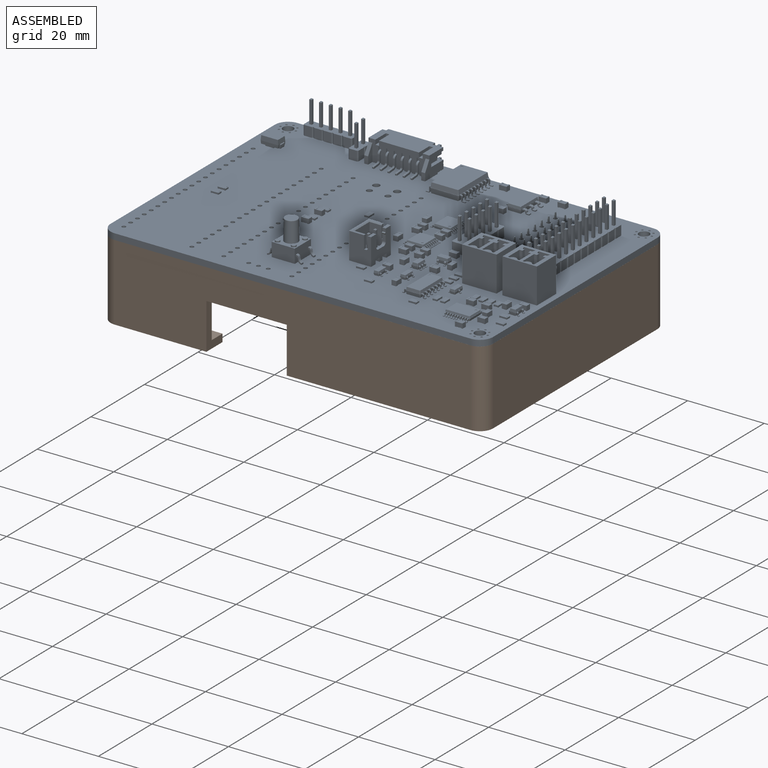
[diagram: assembled view]
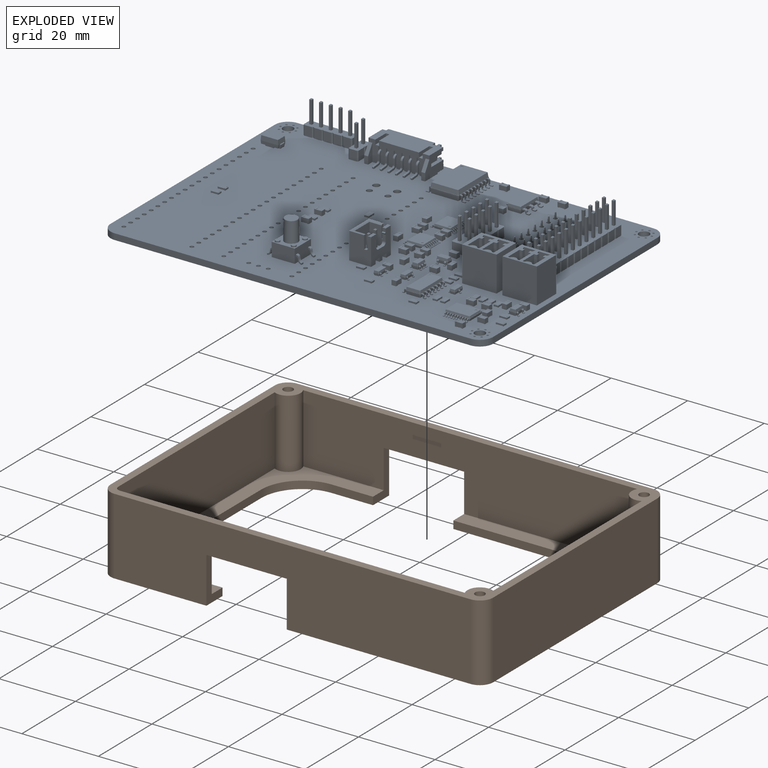
[diagram: exploded view]
GUIDED TOUR — FREECAD ASSEMBLY "Case1"

This assembly has 2 components, labeled P0..P1 below (a component is one placed body or linked part; the same part can appear more than once), held together by 0 modeled joints plus 1 derived contact edge. A joint is a constraint between two components; its type names the relative motion it leaves free:
  CONTACT — a derived adjacency edge — the two components touch in the source model (clearance under 2% of the assembly's diagonal); it is measured from the geometry, not a modeled constraint.
Axis/direction vectors are unit vectors and 'through' points are millimeter coordinates, both in the assembly's world frame.

MATES
  1. CONTACT "contact_0_1": P0 <-> P1, contact direction (0.000, 0.000, -1.000) through (-49.95, -24.05, -1.60) mm (derived from contact, not a modeled constraint)

ASSEMBLY ORDER
  1. P0 — the base component [order verified]
  2. P1 [order verified]
Order-tag legend:
  [order verified] — this step's position reverses a verified removal order: the component was checked to insert without passing through the ones already placed.

Of the 2 components, 1 carries a construction recipe — the FreeCAD feature program (sketches with constraints, then the solid features that consume them) that regenerates the part from scratch, quoted from this document or from the linked companion document it references; the rest are supplied as boundary geometry only. The tour below walks the components in assembly order: each is shown spotlighted twice — in the assembled view, then in the exploded view, where a leader line traces a displaced component back to its assembled socket (components that stay in place when exploded have no leader line; saturated green if recipe-attached, orange if geometry-only; every other component desaturated gray) — followed by its recipe or geometry summary and the mates that hold it.
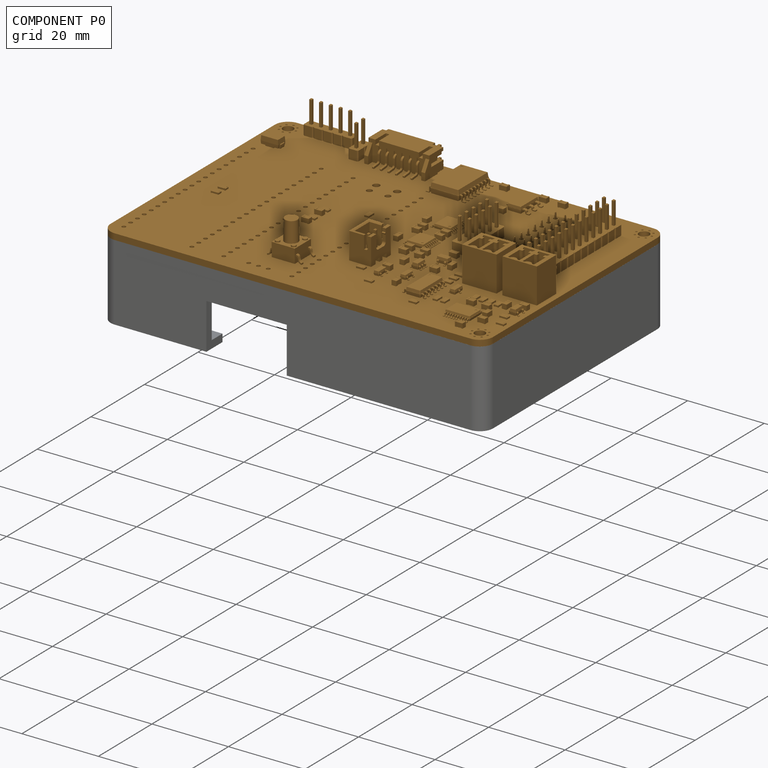
[diagram: component P0 — assembled]
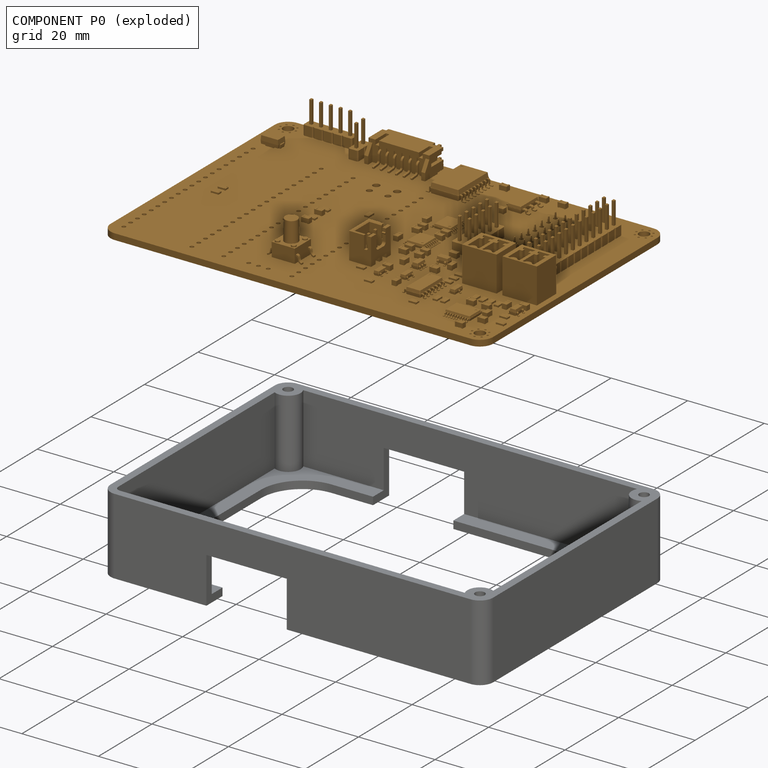
[diagram: component P0 — exploded]
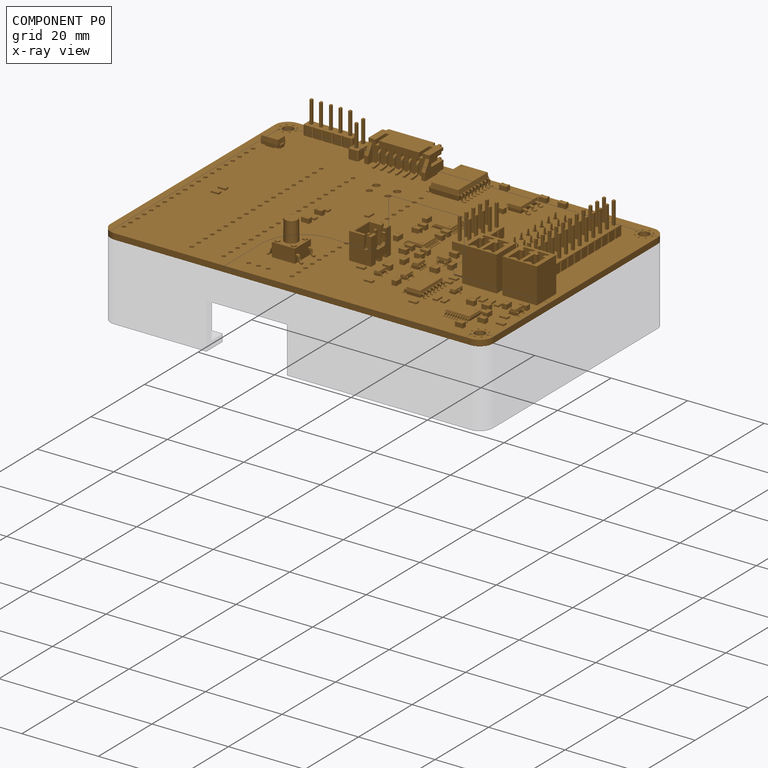
[diagram: component P0 — x-ray view]
COMPONENT P0 — geometry summary ("El-Load-V2-Digital"; no construction recipe available for this part):
  bounding box: 100.0 x 68.2 x 17.8 mm
  tessellated surface: 104,562 triangles
  volume: 14417 mm^3 (12% of its bounding box)
Held by: resting contact with P1 (derived edge).
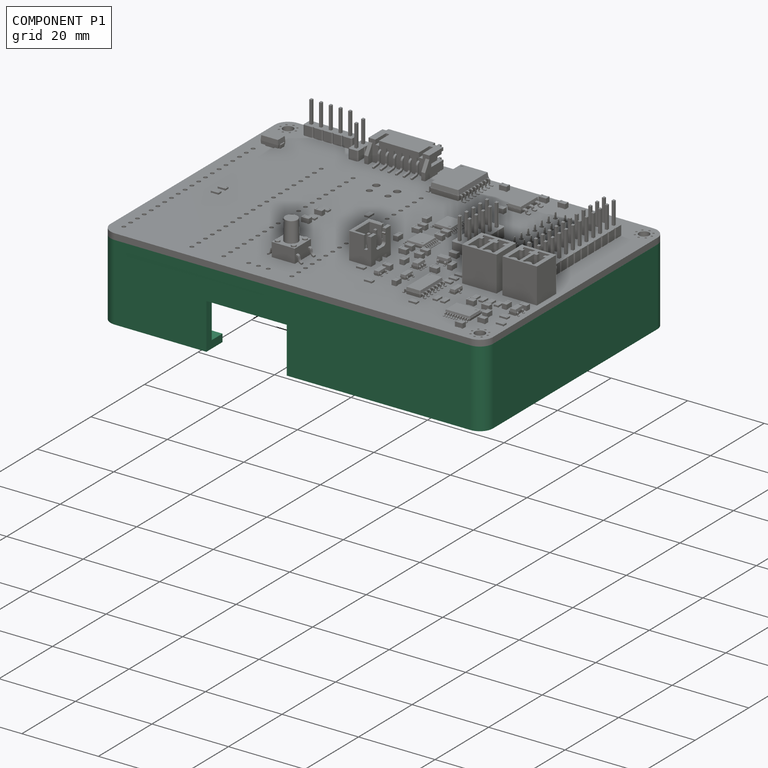
[diagram: component P1 — assembled]
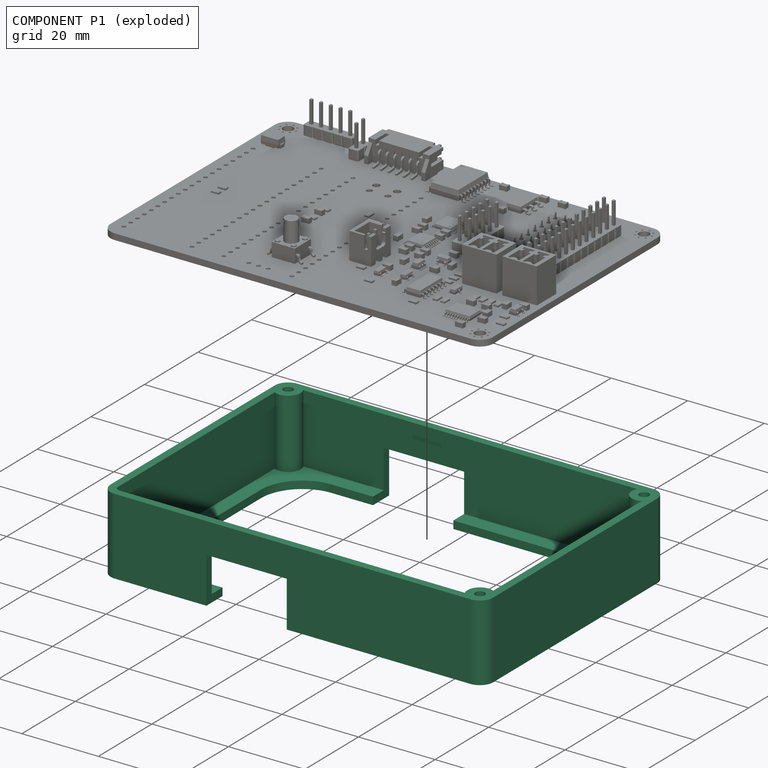
[diagram: component P1 — exploded]
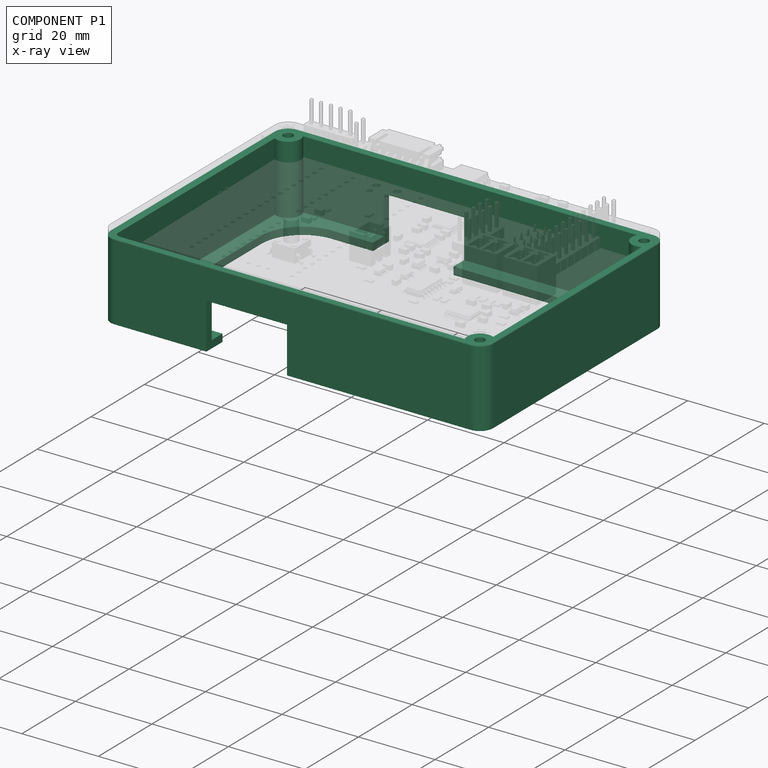
[diagram: component P1 — x-ray view]
COMPONENT P1 — recipe-attached ("Body", modeled in this document).
Held by: resting contact with P0 (derived edge).
Construction recipe (the document's own serialized feature program — sketch geometry with constraints, then the solid features built on it; lengths are millimeters unless a unit is written):

FEATURE [PartDesign::SubShapeBinder] Binder
  BindCopyOnChange = 0
  BindMode = 0
  ClaimChildren = false
  Context = -> Body [Binder.]
  Fuse = false
  MakeFace = true
  OffsetFill = false
  OffsetIntersection = false
  OffsetJoinType = 0
  OffsetOpenResult = false
  PartialLoad = false
  Relative = true
  Support = -> [Board_76d8[Board_Geoms_76d8.]]
  _Version = 2
FEATURE [Sketcher::SketchObject] Sketch
  ExternalGeometry = -> [Binder]
  FullyConstrained = true
  MapMode = 5
  Support = -> [XY_Plane010]
  sketch-geometry (15):
    g0: LineSegment StartX=-46.45 StartY=40.7 StartZ=0 EndX=46.5237 EndY=40.7 EndZ=0
    g1: LineSegment StartX=50.0251 StartY=37.2 StartZ=0 EndX=50.05 EndY=-24.05 EndZ=0
    g2: LineSegment StartX=46.55 StartY=-27.55 StartZ=0 EndX=-46.4892 EndY=-27.5122 EndZ=0
    g3: LineSegment StartX=-49.95 StartY=-24.05 StartZ=0 EndX=-49.95 EndY=37.2 EndZ=0
    g4: ArcOfCircle CenterX=-46.45 CenterY=37.2 CenterZ=0 NormalX=0 NormalY=0 NormalZ=1 AngleXU=0 Radius=3.5 StartAngle=1.5708 EndAngle=3.14159
    g5: GeomPoint X=-49.95 Y=40.7 Z=0
    g6: ArcOfCircle CenterX=-46.4878 CenterY=-24.05 CenterZ=0 NormalX=0 NormalY=0 NormalZ=1 AngleXU=0 Radius=3.46222 StartAngle=3.14159 EndAngle=4.71198
    g7: GeomPoint X=-49.95 Y=-27.5108 Z=0
    g8: ArcOfCircle CenterX=46.5514 CenterY=-24.0514 CenterZ=0 NormalX=0 NormalY=0 NormalZ=1 AngleXU=0 Radius=3.49858 StartAngle=4.71198 EndAngle=6.28359
    g9: GeomPoint X=50.0514 Y=-27.5514 Z=0
    g10: ArcOfCircle CenterX=46.5237 CenterY=37.1986 CenterZ=0 NormalX=0 NormalY=0 NormalZ=1 AngleXU=0 Radius=3.50142 StartAngle=0.000406106 EndAngle=1.5708
    g11: GeomPoint X=50.0237 Y=40.7 Z=0
    g12: Circle CenterX=-46.45 CenterY=37.2 CenterZ=0 NormalX=0 NormalY=0 NormalZ=1 AngleXU=0 Radius=1.25
    g13: Circle CenterX=46.6 CenterY=37.2 CenterZ=0 NormalX=0 NormalY=0 NormalZ=1 AngleXU=0 Radius=1.25
    g14: Circle CenterX=46.6 CenterY=-24.1 CenterZ=0 NormalX=0 NormalY=0 NormalZ=1 AngleXU=0 Radius=1.25
  constraints (28):
    c: PointOnObject(g5,g0)
    c: PointOnObject(g5,g3)
    c: Tangent(g0,g4) = 1.5708
    c: Tangent(g3,g4) = 1.5708
    c: PointOnObject(g7,g2)
    c: PointOnObject(g7,g3)
    c: Tangent(g2,g6) = 1.5708
    c: Tangent(g3,g6) = 1.5708
    c: PointOnObject(g9,g1)
    c: PointOnObject(g9,g2)
    c: Tangent(g1,g8) = 1.5708
    c: Tangent(g2,g8) = 1.5708
    c: PointOnObject(g11,g0)
    c: PointOnObject(g11,g1)
    c: Tangent(g1,g10) = 1.5708
    c: Coincident(g3,g-3)
    c: Coincident(g-4,g0)
    c: Coincident(g3,g-3)
    c: Coincident(g1,g-5)
    c: Coincident(g1,g-5)
    c: Coincident(g2,g-6)
    c: Tangent(g0,g10) = 1.5708
    c: Coincident(g12,g4)
    c: Coincident(g13,g-7)
    c: Coincident(g14,g-8)
    c: Equal(g14,g13)
    c: Equal(g14,g12)
    c: Diameter(g14) = 2.5
FEATURE [PartDesign::Pad] Pad
  Direction = (0,0,1)
  Length = 20
  Length2 = 10
  Profile = -> Sketch
  ReferenceAxis = -> Sketch [N_Axis]
  Type = 0
FEATURE [PartDesign::Thickness] Thickness
  Base = -> Pad [Face13]
  BaseFeature = -> Pad
  Intersection = true
  Join = 0
  Mode = 0
  Reversed = true
  SupportTransform = false
  Value = 2
FEATURE [Sketcher::SketchObject] Sketch001
  ExternalGeometry = -> [Pad]
  FullyConstrained = false
  MapMode = 5
  Support = -> [XY_Plane010]
  sketch-geometry (14):
    g0: ArcOfCircle CenterX=-33.3275 CenterY=23.8013 CenterZ=0 NormalX=0 NormalY=0 NormalZ=1 AngleXU=0 Radius=10.8663 StartAngle=1.5708 EndAngle=3.14159
    g1: LineSegment StartX=-33.3275 StartY=34.6676 StartZ=0 EndX=33.3275 EndY=34.6676 EndZ=0
    g2: ArcOfCircle CenterX=33.3275 CenterY=23.8013 CenterZ=0 NormalX=0 NormalY=0 NormalZ=1 AngleXU=0 Radius=10.8663 StartAngle=-9.68e-14 EndAngle=1.5708
    g3: LineSegment StartX=44.1938 StartY=23.8013 StartZ=0 EndX=44.1938 EndY=-10.6459 EndZ=0
    g4: ArcOfCircle CenterX=33.3275 CenterY=-10.6459 CenterZ=0 NormalX=0 NormalY=0 NormalZ=1 AngleXU=0 Radius=10.8663 StartAngle=4.71239 EndAngle=6.28319
    g5: LineSegment StartX=33.3275 StartY=-21.5122 StartZ=0 EndX=-33.3275 EndY=-21.5122 EndZ=0
    g6: ArcOfCircle CenterX=-33.3275 CenterY=-10.6459 CenterZ=0 NormalX=0 NormalY=0 NormalZ=1 AngleXU=0 Radius=10.8663 StartAngle=3.14159 EndAngle=4.71239
    g7: LineSegment StartX=-44.1938 StartY=-10.6459 StartZ=0 EndX=-44.1938 EndY=23.8013 EndZ=0
    g8: GeomPoint X=-44.1938 Y=34.6676 Z=0
    g9: GeomPoint X=44.1938 Y=-21.5122 Z=0
    g10: LineSegment StartX=-44.1938 StartY=-10.6459 StartZ=0 EndX=-50.2262 EndY=-10.6459 EndZ=0
    g11: LineSegment StartX=-33.3275 StartY=34.6676 StartZ=0 EndX=-33.3275 EndY=40.7 EndZ=0
    g12: LineSegment StartX=44.1938 StartY=23.8013 StartZ=0 EndX=50.0312 EndY=22.2799 EndZ=0
    g13: LineSegment StartX=33.3275 StartY=-21.5122 StartZ=0 EndX=33.3275 EndY=-27.5446 EndZ=0
  constraints (33):
    c: Tangent(g0,g1) = 1.5708
    c: Tangent(g1,g2) = 1.5708
    c: Tangent(g2,g3) = 1.5708
    c: Tangent(g3,g4) = 1.5708
    c: Tangent(g4,g5) = 1.5708
    c: Tangent(g5,g6) = 1.5708
    c: Tangent(g6,g7) = 1.5708
    c: Tangent(g7,g0) = 1.5708
    c: Horizontal(g5)
    c: Vertical(g3)
    c: Vertical(g7)
    c: Equal(g0,g2)
    c: Equal(g2,g4)
    c: Equal(g4,g6)
    c: PointOnObject(g8,g1)
    c: PointOnObject(g8,g7)
    c: PointOnObject(g9,g3)
    c: PointOnObject(g9,g5)
    c: Symmetric(g0,g1,g-2)
    c: DistanceY(g-6,g5) = 6
    c: Coincident(g10,g6)
    c: Horizontal(g10)
    c: Coincident(g11,g0)
    c: PointOnObject(g11,g-4)
    c: Vertical(g11)
    c: Coincident(g12,g2)
    c: PointOnObject(g12,g-5)
    c: Coincident(g13,g4)
    c: PointOnObject(g13,g-6)
    c: Vertical(g13)
    c: Equal(g13,g12)
    c: Equal(g12,g11)
    c: Equal(g11,g10)
FEATURE [PartDesign::Pocket] Pocket
  BaseFeature = -> Thickness
  Direction = (0,0,-1)
  Length = 5
  Length2 = 5
  Midplane = true
  Profile = -> Sketch001
  ReferenceAxis = -> Sketch001 [N_Axis]
  Type = 1
FEATURE [Sketcher::SketchObject] Sketch002
  ExternalGeometry = -> [Pocket]
  FullyConstrained = true
  MapMode = 5
  Placement = pos=(0,0,0) rot=(1,0,0;1.5708rad)
  Support = -> [XZ_Plane010]
  expr: Constraints[9] = <<Pad>>.Length - 8mm
  sketch-geometry (4):
    g0: LineSegment StartX=-22.5 StartY=0 StartZ=0 EndX=-1.5 EndY=0 EndZ=0
    g1: LineSegment StartX=-1.5 StartY=0 StartZ=0 EndX=-1.5 EndY=12 EndZ=0
    g2: LineSegment StartX=-1.5 StartY=12 StartZ=0 EndX=-22.5 EndY=12 EndZ=0
    g3: LineSegment StartX=-22.5 StartY=12 StartZ=0 EndX=-22.5 EndY=0 EndZ=0
  constraints (12):
    c: Coincident(g0,g1)
    c: Coincident(g1,g2)
    c: Coincident(g2,g3)
    c: Coincident(g3,g0)
    c: Horizontal(g0)
    c: Horizontal(g2)
    c: Vertical(g1)
    c: Vertical(g3)
    c: PointOnObject(g0,g-1)
    c: DistanceY(g3,g3) = 12
    c: DistanceX(g2,g2) = 21
    c: DistanceX(g0,g-1) = 1.5
FEATURE [PartDesign::Pocket] Pocket001
  BaseFeature = -> Pocket
  Direction = (0,1,-2e-16)
  Length = 5
  Length2 = 5
  Midplane = true
  Profile = -> Sketch002
  ReferenceAxis = -> Sketch002 [N_Axis]
  Type = 1
FEATURE [PartDesign::Body] Body
  Group = -> [Sketch,Binder,Pad,Thickness,Sketch001,Pocket,Sketch002,Pocket001]
  Origin = -> Origin010
  Placement = pos=(0,0,-21.6) rot=(0,0,1;0rad)
  Tip = -> Pocket001
PROVENANCE & LICENSES
Assembly and component geometry: a FreeCAD (.FCStd) document from a public repository crawl; components, placements and joints were extracted with FreeCAD and each solid tessellated.
Construction recipes: the document's own serialized feature recipes (and, for linked parts, the recipes of companion documents from the same project).
License: as declared in the source repository (recorded in the dataset sidecar).
Joints: native FreeCAD joints and A2plus constraints are mapped to standard mate types; edges marked 'derived from contact' connect touching components and are measured from the geometry, not modeled.
Verification: 1 of this assembly's 2 components carries a construction recipe (1 from this document itself); the rest are geometry-only. Every component's tessellation passed the extraction mesh gates (mesh-volume checksum against the B-rep where available, bounding-box inflation <= 2%).
Renders: orthographic iso camera (az 35 / el 25); the floor grid conveys scale (grid pitch printed in each image; no ruler). In the exploded view each component is displaced by its stored offset vector: the offsets alone carry the explosion direction (mate normal/axis signs are not orientation cues and do not encode it), and separation distances are assigned per mate-chain, not proportionally to assembly-order depth.
